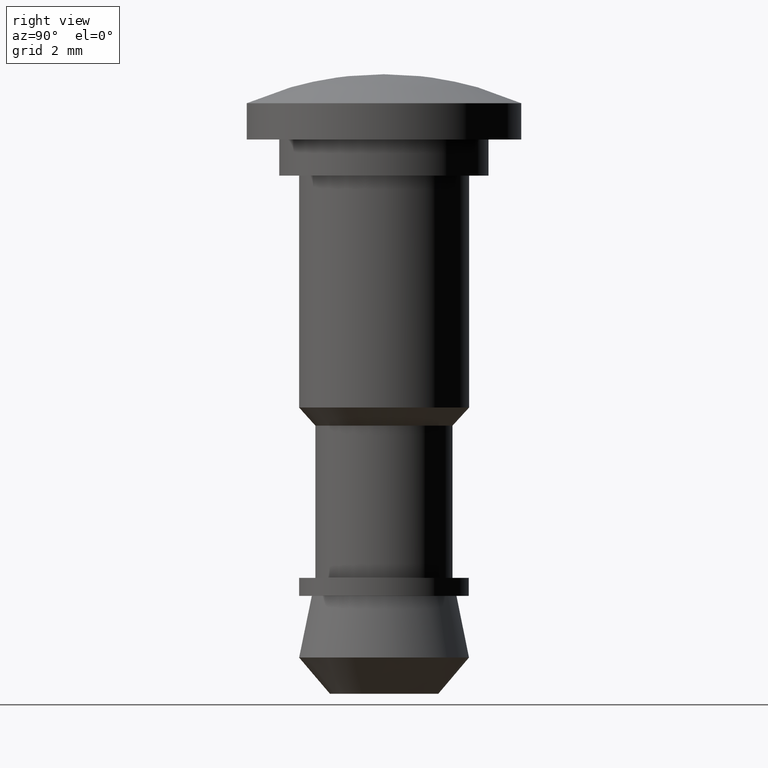
[diagram: clean part render]
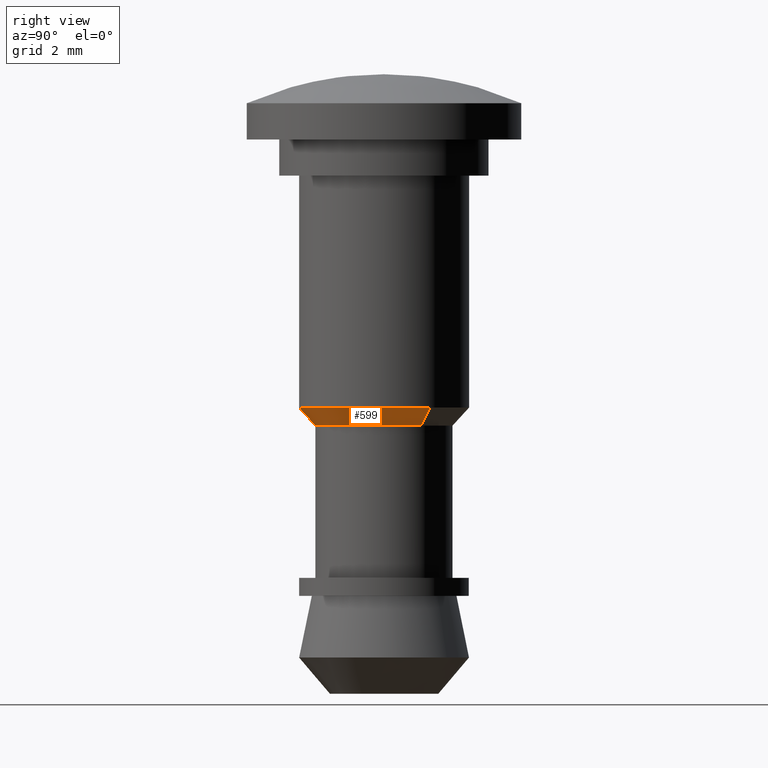
[diagram: same view with one face highlighted and labeled with its STEP entity id]
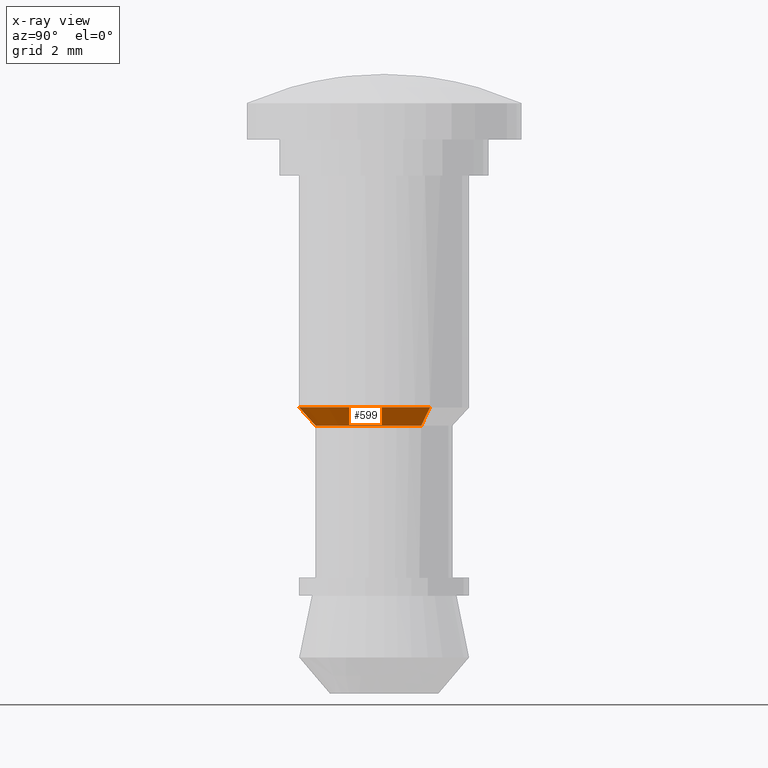
[diagram: x-ray of the same camera — body ghosted, the highlighted face saturated]
A machine part, right view. The second image highlights one B-rep face of the part: STEP entity #599.
The next image is the same camera in x-ray: the body ghosted, the highlighted face saturated — about 0% of this face is hidden behind the body in this view.
In plain terms, the highlighted face is a freeform B-spline surface patch.
Its self-contained STEP definition (entity closure, byte-faithful):
#250=CARTESIAN_POINT('',(1.981144114827373,1.263949364605564,-6.399999999999643));
#251=VERTEX_POINT('',#250);
#313=CARTESIAN_POINT('',(0.184378874975639,-2.342755734273563,-6.399999999997990));
#314=VERTEX_POINT('',#313);
#328=CARTESIAN_POINT('',(2.350000000000000,0.0,-6.400000000000111));
#329=VERTEX_POINT('',#328);
#330=CARTESIAN_POINT('',(2.350000000000000,0.0,-6.400000000000111));
#331=CARTESIAN_POINT('',(2.350000000000000,-2.172317655368778,-6.400000000000111));
#332=CARTESIAN_POINT('',(0.184378874975639,-2.342755734273564,-6.399999999997990));
#340=(BOUNDED_CURVE()B_SPLINE_CURVE(2,(#330,#331,#332),.UNSPECIFIED.,.F.,.U.)B_SPLINE_CURVE_WITH_KNOTS((3,3),(0.500000000000000,0.736331300630563),.UNSPECIFIED.)CURVE()GEOMETRIC_REPRESENTATION_ITEM()RATIONAL_B_SPLINE_CURVE((1.0,0.723120658607778,0.969723356167217))REPRESENTATION_ITEM(''));
#341=EDGE_CURVE('',#329,#314,#340,.T.);
#343=CARTESIAN_POINT('',(1.981144114827373,1.263949364605564,-6.399999999999643));
#344=CARTESIAN_POINT('',(2.350000000000001,0.685795930149978,-6.400000000000110));
#345=CARTESIAN_POINT('',(2.350000000000000,0.0,-6.400000000000111));
#353=(BOUNDED_CURVE()B_SPLINE_CURVE(2,(#343,#344,#345),.UNSPECIFIED.,.F.,.U.)B_SPLINE_CURVE_WITH_KNOTS((3,3),(0.407950112626527,0.500000000000000),.UNSPECIFIED.)CURVE()GEOMETRIC_REPRESENTATION_ITEM()RATIONAL_B_SPLINE_CURVE((0.863729296954292,0.892156848783071,1.0))REPRESENTATION_ITEM(''));
#354=EDGE_CURVE('',#251,#329,#353,.T.);
#466=CARTESIAN_POINT('',(1.601776092840370,1.021916507551292,-6.899999999999769));
#467=VERTEX_POINT('',#466);
#515=CARTESIAN_POINT('',(0.149072281924697,-1.894142934094936,-6.899999999994149));
#516=VERTEX_POINT('',#515);
#530=CARTESIAN_POINT('',(0.149072281924697,-1.894142934094936,-6.899999999994149));
#531=CARTESIAN_POINT('',(0.184378874975639,-2.342755734273563,-6.399999999997990));
#532=QUASI_UNIFORM_CURVE('',1,(#530,#531),.UNSPECIFIED.,.F.,.U.);
#533=EDGE_CURVE('',#516,#314,#532,.T.);
#539=CARTESIAN_POINT('',(1.601776092840370,1.021916507551292,-6.899999999999769));
#540=CARTESIAN_POINT('',(1.981144114827373,1.263949364605564,-6.399999999999643));
#541=QUASI_UNIFORM_CURVE('',1,(#539,#540),.UNSPECIFIED.,.F.,.U.);
#542=EDGE_CURVE('',#467,#251,#541,.T.);
#547=CARTESIAN_POINT('',(0.148189617055968,-1.882927614088444,-6.912499999999998));
#548=CARTESIAN_POINT('',(2.031117231144412,-1.734737997032476,-6.912499999999998));
#549=CARTESIAN_POINT('',(1.882927614088444,0.148189617055968,-6.912499999999998));
#550=CARTESIAN_POINT('',(1.845928344209992,0.618309915220547,-6.912499999999998));
#551=CARTESIAN_POINT('',(1.592291892292633,1.015865686121517,-6.912499999999999));
#552=CARTESIAN_POINT('',(0.185283606408048,-2.354251437277450,-6.387187500000112));
#553=CARTESIAN_POINT('',(2.539535043685496,-2.168967830869402,-6.387187500000112));
#554=CARTESIAN_POINT('',(2.354251437277450,0.185283606408048,-6.387187500000112));
#555=CARTESIAN_POINT('',(2.307990718788954,0.773081766765409,-6.387187500000112));
#556=CARTESIAN_POINT('',(1.990865420394796,1.270151456560499,-6.387187500000112));
#564=(BOUNDED_SURFACE()B_SPLINE_SURFACE(2,1,((#547,#552),(#548,#553),(#549,#554),(#550,#555),(#551,#556)),.UNSPECIFIED.,.F.,.F.,.U.)B_SPLINE_SURFACE_WITH_KNOTS((3,2,3),(2,2),(0.0,3.912713086871534,5.164781274670426),(0.0,1.0),.UNSPECIFIED.)GEOMETRIC_REPRESENTATION_ITEM()RATIONAL_B_SPLINE_SURFACE(((1.0,1.0),(0.707106781186548,0.707106781186548),(1.0,1.0),(0.906274169979695,0.906274169979695),(0.872532871172386,0.872532871172386)))REPRESENTATION_ITEM('')SURFACE());
#565=CARTESIAN_POINT('',(1.900000000000000,0.0,-6.900000000000000));
#566=VERTEX_POINT('',#565);
#567=CARTESIAN_POINT('',(1.601776092840370,1.021916507551292,-6.899999999999769));
#568=CARTESIAN_POINT('',(1.900000000000000,0.554473305224971,-6.900000000000000));
#569=CARTESIAN_POINT('',(1.900000000000000,0.0,-6.900000000000000));
#577=(BOUNDED_CURVE()B_SPLINE_CURVE(2,(#567,#568,#569),.UNSPECIFIED.,.F.,.U.)B_SPLINE_CURVE_WITH_KNOTS((3,3),(0.407950112626923,0.500000000000000),.UNSPECIFIED.)CURVE()GEOMETRIC_REPRESENTATION_ITEM()RATIONAL_B_SPLINE_CURVE((0.863729296954536,0.892156848783535,1.0))REPRESENTATION_ITEM(''));
#578=EDGE_CURVE('',#467,#566,#577,.T.);
#579=ORIENTED_EDGE('',*,*,#578,.F.);
#580=ORIENTED_EDGE('',*,*,#542,.T.);
#581=ORIENTED_EDGE('',*,*,#354,.T.);
#582=ORIENTED_EDGE('',*,*,#341,.T.);
#583=ORIENTED_EDGE('',*,*,#533,.F.);
#584=CARTESIAN_POINT('',(1.900000000000000,0.0,-6.900000000000000));
#585=CARTESIAN_POINT('',(1.900000000000000,-1.756341934073613,-6.900000000000001));
#586=CARTESIAN_POINT('',(0.149072281924697,-1.894142934094936,-6.899999999994149));
#594=(BOUNDED_CURVE()B_SPLINE_CURVE(2,(#584,#585,#586),.UNSPECIFIED.,.F.,.U.)B_SPLINE_CURVE_WITH_KNOTS((3,3),(0.500000000000000,0.736331300625277),.UNSPECIFIED.)CURVE()GEOMETRIC_REPRESENTATION_ITEM()RATIONAL_B_SPLINE_CURVE((1.0,0.723120658613972,0.969723356156184))REPRESENTATION_ITEM(''));
#595=EDGE_CURVE('',#566,#516,#594,.T.);
#596=ORIENTED_EDGE('',*,*,#595,.F.);
#597=EDGE_LOOP('',(#579,#580,#581,#582,#583,#596));
#598=FACE_OUTER_BOUND('',#597,.T.);
#599=ADVANCED_FACE('',(#598),#564,.T.);